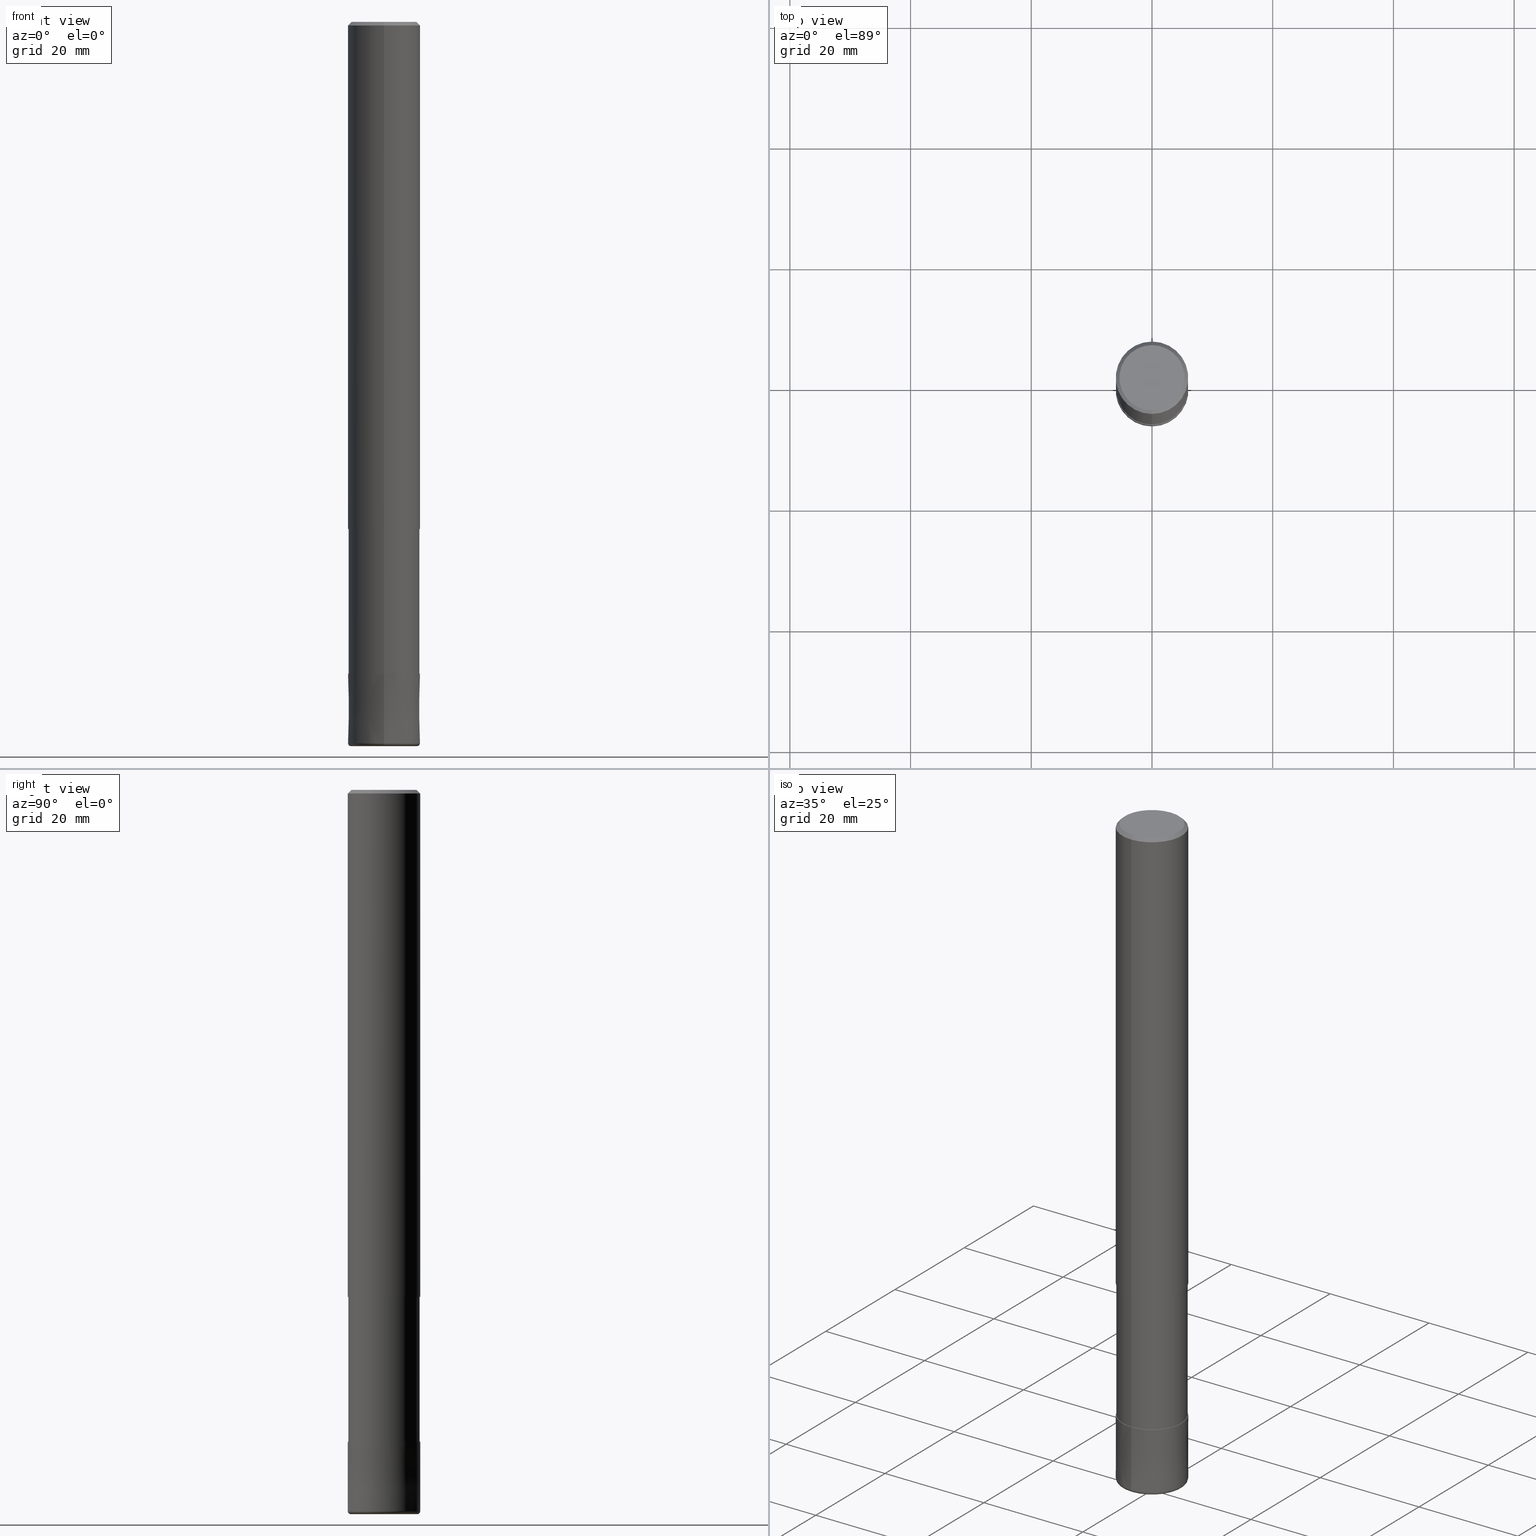
[diagram: canonical four-view strip — front | top / right | iso, engineering-drawing reading convention]
A machine part, canonical four-view strip (front | top / right | iso — engineering-drawing reading convention). The complete STEP part file that produces these views, byte-faithful:
ISO-10303-21;
HEADER;
FILE_DESCRIPTION(('no description'),'unknown implementation level');
FILE_NAME('HRRS4120-05-36-Huellk.stp','  ',('CIMSOURCE GmbH'),('CADClick - KiM GmbH - www.kimweb.de'),'unknown preprocess','ACIS','unknown authorization');
FILE_SCHEMA(('automotive_design'));
ENDSEC;
DATA;
#1=MECHANICAL_DESIGN_GEOMETRIC_PRESENTATION_REPRESENTATION(' ',(#14,#15,#16,#17,#18,#19,#20,#21,#22,#23,#24,#25,#26,#27,#28,#29,#30,#31,#32,#33,#34,#35,#36,#37,#38,#39,#40,#41,#42,#43,#44,#45,#46,#47,#48,#49,#50,#51,#52,#53,#54,#55,#56,#57,#58,#59,#60,#61,#62,#63,#64,#65,#66,#67,#68,#69,#70,#71,#72),#10);
#2=PRODUCT_DEFINITION_CONTEXT('',#73,'design');
#3=APPLICATION_PROTOCOL_DEFINITION('INTERNATIONAL STANDARD','automotive_design',1994,#73);
#4=PRODUCT_CATEGORY_RELATIONSHIP('NONE','NONE',#74,#75);
#5=SHAPE_DEFINITION_REPRESENTATION(#76,#77);
#6=PRODUCT_DEFINITION_CONTEXT('',#78,'design');
#7=APPLICATION_PROTOCOL_DEFINITION('INTERNATIONAL STANDARD','automotive_design',1994,#78);
#8=PRODUCT_CATEGORY_RELATIONSHIP('NONE','NONE',#79,#80);
#9=SHAPE_DEFINITION_REPRESENTATION(#81,#82);
#10= (GEOMETRIC_REPRESENTATION_CONTEXT(3)GLOBAL_UNCERTAINTY_ASSIGNED_CONTEXT((#85))GLOBAL_UNIT_ASSIGNED_CONTEXT((#87,#88,#89))REPRESENTATION_CONTEXT('NONE','WORKSPACE'));
#14=STYLED_ITEM('',(#91),#92);
#15=STYLED_ITEM('',(#93),#94);
#16=STYLED_ITEM('',(#95),#96);
#17=STYLED_ITEM('',(#97),#98);
#18=STYLED_ITEM('',(#99),#100);
#19=STYLED_ITEM('',(#101),#102);
#20=STYLED_ITEM('',(#103),#104);
#21=STYLED_ITEM('',(#105),#106);
#22=STYLED_ITEM('',(#107),#108);
#23=STYLED_ITEM('',(#109),#110);
#24=STYLED_ITEM('',(#111),#112);
#25=STYLED_ITEM('',(#113),#114);
#26=STYLED_ITEM('',(#115),#116);
#27=STYLED_ITEM('',(#117),#118);
#28=STYLED_ITEM('',(#119),#120);
#29=STYLED_ITEM('',(#121),#122);
#30=STYLED_ITEM('',(#123),#124);
#31=STYLED_ITEM('',(#125),#126);
#32=STYLED_ITEM('',(#127),#128);
#33=STYLED_ITEM('',(#129),#130);
#34=STYLED_ITEM('',(#131),#132);
#35=STYLED_ITEM('',(#133),#134);
#36=STYLED_ITEM('',(#135),#136);
#37=STYLED_ITEM('',(#137),#138);
#38=STYLED_ITEM('',(#139),#140);
#39=STYLED_ITEM('',(#141),#142);
#40=STYLED_ITEM('',(#143),#144);
#41=STYLED_ITEM('',(#145),#146);
#42=STYLED_ITEM('',(#147),#148);
#43=STYLED_ITEM('',(#149),#150);
#44=STYLED_ITEM('',(#151),#152);
#45=STYLED_ITEM('',(#153),#154);
#46=STYLED_ITEM('',(#155),#156);
#47=STYLED_ITEM('',(#157),#158);
#48=STYLED_ITEM('',(#159),#160);
#49=STYLED_ITEM('',(#161),#162);
#50=STYLED_ITEM('',(#163),#164);
#51=STYLED_ITEM('',(#165),#166);
#52=STYLED_ITEM('',(#167),#168);
#53=STYLED_ITEM('',(#169),#170);
#54=STYLED_ITEM('',(#171),#172);
#55=STYLED_ITEM('',(#173),#174);
#56=STYLED_ITEM('',(#175),#176);
#57=STYLED_ITEM('',(#177),#178);
#58=STYLED_ITEM('',(#179),#180);
#59=STYLED_ITEM('',(#181),#182);
#60=STYLED_ITEM('',(#183),#184);
#61=STYLED_ITEM('',(#185),#186);
#62=STYLED_ITEM('',(#187),#188);
#63=STYLED_ITEM('',(#189),#190);
#64=STYLED_ITEM('',(#191),#192);
#65=STYLED_ITEM('',(#193),#194);
#66=STYLED_ITEM('',(#195),#196);
#67=STYLED_ITEM('',(#197),#198);
#68=STYLED_ITEM('',(#199),#200);
#69=STYLED_ITEM('',(#201),#202);
#70=STYLED_ITEM('',(#203),#204);
#71=STYLED_ITEM('',(#205),#206);
#72=STYLED_ITEM('',(#207),#208);
#73=APPLICATION_CONTEXT(' ');
#74=PRODUCT_CATEGORY('part','NONE');
#75=PRODUCT_RELATED_PRODUCT_CATEGORY('detail',' ',(#209));
#76=PRODUCT_DEFINITION_SHAPE('NONE','NONE',#210);
#77=ADVANCED_BREP_SHAPE_REPRESENTATION('1',(#110,#211),#10);
#78=APPLICATION_CONTEXT(' ');
#79=PRODUCT_CATEGORY('part','NONE');
#80=PRODUCT_RELATED_PRODUCT_CATEGORY('detail',' ',(#212));
#81=PRODUCT_DEFINITION_SHAPE('NONE','NONE',#213);
#82=ADVANCED_BREP_SHAPE_REPRESENTATION('2',(#126,#214),#10);
#85=UNCERTAINTY_MEASURE_WITH_UNIT(LENGTH_MEASURE(1.0E-006),#87,'','');
#87= (CONVERSION_BASED_UNIT('MILLIMETRE',#217)LENGTH_UNIT()NAMED_UNIT(#220));
#88= (NAMED_UNIT(#222)PLANE_ANGLE_UNIT()SI_UNIT($,.RADIAN.));
#89= (NAMED_UNIT(#222)SOLID_ANGLE_UNIT()SI_UNIT($,.STERADIAN.));
#91=PRESENTATION_STYLE_ASSIGNMENT((#228));
#92=VERTEX_POINT('',#229);
#93=PRESENTATION_STYLE_ASSIGNMENT((#230));
#94=ADVANCED_FACE('',(#231),#232,.T.);
#95=PRESENTATION_STYLE_ASSIGNMENT((#233));
#96=ADVANCED_FACE('',(#234),#235,.T.);
#97=PRESENTATION_STYLE_ASSIGNMENT((#236));
#98=ADVANCED_FACE('',(#237,#238),#239,.T.);
#99=PRESENTATION_STYLE_ASSIGNMENT((#240));
#100=ADVANCED_FACE('',(#241),#242,.T.);
#101=PRESENTATION_STYLE_ASSIGNMENT((#243));
#102=ADVANCED_FACE('',(#244),#245,.T.);
#103=PRESENTATION_STYLE_ASSIGNMENT((#246));
#104=ADVANCED_FACE('',(#247),#248,.T.);
#105=PRESENTATION_STYLE_ASSIGNMENT((#249));
#106=ADVANCED_FACE('',(#250),#251,.T.);
#107=PRESENTATION_STYLE_ASSIGNMENT((#252));
#108=EDGE_CURVE('',#118,#128,#253,.T.);
#109=PRESENTATION_STYLE_ASSIGNMENT((#254));
#110=MANIFOLD_SOLID_BREP('1',#255);
#111=PRESENTATION_STYLE_ASSIGNMENT((#256));
#112=ADVANCED_FACE('',(#257),#258,.T.);
#113=PRESENTATION_STYLE_ASSIGNMENT((#259));
#114=ADVANCED_FACE('',(#260),#261,.T.);
#115=PRESENTATION_STYLE_ASSIGNMENT((#262));
#116=EDGE_CURVE('',#128,#186,#263,.T.);
#117=PRESENTATION_STYLE_ASSIGNMENT((#264));
#118=VERTEX_POINT('',#265);
#119=PRESENTATION_STYLE_ASSIGNMENT((#266));
#120=EDGE_CURVE('',#128,#144,#267,.T.);
#121=PRESENTATION_STYLE_ASSIGNMENT((#268));
#122=EDGE_CURVE('',#162,#124,#269,.T.);
#123=PRESENTATION_STYLE_ASSIGNMENT((#270));
#124=VERTEX_POINT('',#271);
#125=PRESENTATION_STYLE_ASSIGNMENT((#272));
#126=MANIFOLD_SOLID_BREP('2',#273);
#127=PRESENTATION_STYLE_ASSIGNMENT((#274));
#128=VERTEX_POINT('',#275);
#129=PRESENTATION_STYLE_ASSIGNMENT((#276));
#130=EDGE_CURVE('',#192,#144,#277,.T.);
#131=PRESENTATION_STYLE_ASSIGNMENT((#278));
#132=EDGE_CURVE('',#168,#202,#279,.T.);
#133=PRESENTATION_STYLE_ASSIGNMENT((#280));
#134=EDGE_CURVE('',#200,#204,#281,.T.);
#135=PRESENTATION_STYLE_ASSIGNMENT((#282));
#136=EDGE_CURVE('',#204,#200,#283,.T.);
#137=PRESENTATION_STYLE_ASSIGNMENT((#284));
#138=EDGE_CURVE('',#202,#168,#285,.T.);
#139=PRESENTATION_STYLE_ASSIGNMENT((#286));
#140=ADVANCED_FACE('',(#287),#288,.T.);
#141=PRESENTATION_STYLE_ASSIGNMENT((#289));
#142=ADVANCED_FACE('',(#290),#291,.T.);
#143=PRESENTATION_STYLE_ASSIGNMENT((#292));
#144=VERTEX_POINT('',#293);
#145=PRESENTATION_STYLE_ASSIGNMENT((#294));
#146=EDGE_CURVE('',#198,#118,#295,.T.);
#147=PRESENTATION_STYLE_ASSIGNMENT((#296));
#148=ADVANCED_FACE('',(#297),#298,.T.);
#149=PRESENTATION_STYLE_ASSIGNMENT((#299));
#150=ADVANCED_FACE('',(#300),#301,.T.);
#151=PRESENTATION_STYLE_ASSIGNMENT((#302));
#152=EDGE_CURVE('',#182,#206,#303,.T.);
#153=PRESENTATION_STYLE_ASSIGNMENT((#304));
#154=EDGE_CURVE('',#144,#192,#305,.T.);
#155=PRESENTATION_STYLE_ASSIGNMENT((#306));
#156=EDGE_CURVE('',#168,#200,#307,.T.);
#157=PRESENTATION_STYLE_ASSIGNMENT((#308));
#158=EDGE_CURVE('',#204,#202,#309,.T.);
#159=PRESENTATION_STYLE_ASSIGNMENT((#310));
#160=EDGE_CURVE('',#162,#168,#311,.T.);
#161=PRESENTATION_STYLE_ASSIGNMENT((#312));
#162=VERTEX_POINT('',#313);
#163=PRESENTATION_STYLE_ASSIGNMENT((#314));
#164=EDGE_CURVE('',#206,#182,#315,.T.);
#165=PRESENTATION_STYLE_ASSIGNMENT((#316));
#166=EDGE_CURVE('',#92,#172,#317,.T.);
#167=PRESENTATION_STYLE_ASSIGNMENT((#318));
#168=VERTEX_POINT('',#319);
#169=PRESENTATION_STYLE_ASSIGNMENT((#320));
#170=EDGE_CURVE('',#186,#198,#321,.T.);
#171=PRESENTATION_STYLE_ASSIGNMENT((#322));
#172=VERTEX_POINT('',#323);
#173=PRESENTATION_STYLE_ASSIGNMENT((#324));
#174=ADVANCED_FACE('',(#325),#326,.T.);
#175=PRESENTATION_STYLE_ASSIGNMENT((#327));
#176=EDGE_CURVE('',#172,#92,#328,.T.);
#177=PRESENTATION_STYLE_ASSIGNMENT((#329));
#178=EDGE_CURVE('',#202,#124,#330,.T.);
#179=PRESENTATION_STYLE_ASSIGNMENT((#331));
#180=EDGE_CURVE('',#206,#172,#332,.T.);
#181=PRESENTATION_STYLE_ASSIGNMENT((#333));
#182=VERTEX_POINT('',#334);
#183=PRESENTATION_STYLE_ASSIGNMENT((#335));
#184=EDGE_CURVE('',#192,#118,#336,.T.);
#185=PRESENTATION_STYLE_ASSIGNMENT((#337));
#186=VERTEX_POINT('',#338);
#187=PRESENTATION_STYLE_ASSIGNMENT((#339));
#188=EDGE_CURVE('',#198,#186,#340,.T.);
#189=PRESENTATION_STYLE_ASSIGNMENT((#341));
#190=ADVANCED_FACE('',(#342),#343,.T.);
#191=PRESENTATION_STYLE_ASSIGNMENT((#344));
#192=VERTEX_POINT('',#345);
#193=PRESENTATION_STYLE_ASSIGNMENT((#346));
#194=EDGE_CURVE('',#124,#162,#347,.T.);
#195=PRESENTATION_STYLE_ASSIGNMENT((#348));
#196=EDGE_CURVE('',#128,#118,#349,.T.);
#197=PRESENTATION_STYLE_ASSIGNMENT((#350));
#198=VERTEX_POINT('',#351);
#199=PRESENTATION_STYLE_ASSIGNMENT((#352));
#200=VERTEX_POINT('',#353);
#201=PRESENTATION_STYLE_ASSIGNMENT((#354));
#202=VERTEX_POINT('',#355);
#203=PRESENTATION_STYLE_ASSIGNMENT((#356));
#204=VERTEX_POINT('',#357);
#205=PRESENTATION_STYLE_ASSIGNMENT((#358));
#206=VERTEX_POINT('',#359);
#207=PRESENTATION_STYLE_ASSIGNMENT((#360));
#208=EDGE_CURVE('',#92,#182,#361,.T.);
#209=PRODUCT('1','1','PART-1-DESC',(#362));
#210=PRODUCT_DEFINITION('NONE','NONE',#363,#2);
#211=AXIS2_PLACEMENT_3D('',#364,#365,#366);
#212=PRODUCT('2','2','PART-2-DESC',(#367));
#213=PRODUCT_DEFINITION('NONE','NONE',#368,#6);
#214=AXIS2_PLACEMENT_3D('',#369,#370,#371);
#217=LENGTH_MEASURE_WITH_UNIT(LENGTH_MEASURE(1.0),#372);
#220=DIMENSIONAL_EXPONENTS(1.0,0.0,0.0,0.0,0.0,0.0,0.0);
#222=DIMENSIONAL_EXPONENTS(0.0,0.0,0.0,0.0,0.0,0.0,0.0);
#228=POINT_STYLE(' ',#373,POSITIVE_LENGTH_MEASURE(1.0E-006),#374);
#229=CARTESIAN_POINT('',(7.23736232077256E-016,-5.90995,-108.0));
#230=SURFACE_STYLE_USAGE(.BOTH.,#375);
#231=FACE_OUTER_BOUND('',#376,.T.);
#232=CONICAL_SURFACE('',#377,5.99995,8.69565217367361E-006);
#233=SURFACE_STYLE_USAGE(.BOTH.,#378);
#234=FACE_OUTER_BOUND('',#379,.T.);
#235=PLANE('',#380);
#236=SURFACE_STYLE_USAGE(.BOTH.,#381);
#237=FACE_OUTER_BOUND('',#382,.T.);
#238=FACE_BOUND('',#383,.T.);
#239=PLANE('',#384);
#240=SURFACE_STYLE_USAGE(.BOTH.,#385);
#241=FACE_OUTER_BOUND('',#386,.T.);
#242=CONICAL_SURFACE('',#387,5.7,0.785398163397453);
#243=SURFACE_STYLE_USAGE(.BOTH.,#388);
#244=FACE_OUTER_BOUND('',#389,.T.);
#245=PLANE('',#390);
#246=SURFACE_STYLE_USAGE(.BOTH.,#391);
#247=FACE_OUTER_BOUND('',#392,.T.);
#248=CYLINDRICAL_SURFACE('',#393,5.90995);
#249=SURFACE_STYLE_USAGE(.BOTH.,#394);
#250=FACE_OUTER_BOUND('',#395,.T.);
#251=TOROIDAL_SURFACE('',#396,5.5,0.499999999999995);
#252=CURVE_STYLE('',#397,POSITIVE_LENGTH_MEASURE(1.0E-006),#398);
#253=CIRCLE('',#399,6.0);
#254=SURFACE_STYLE_USAGE(.BOTH.,#400);
#255=CLOSED_SHELL('',(#148,#150,#190,#98,#96,#100,#174,#104,#112));
#256=SURFACE_STYLE_USAGE(.BOTH.,#401);
#257=FACE_OUTER_BOUND('',#402,.T.);
#258=PLANE('',#403);
#259=SURFACE_STYLE_USAGE(.BOTH.,#404);
#260=FACE_OUTER_BOUND('',#405,.T.);
#261=TOROIDAL_SURFACE('',#406,5.5,0.499999999999995);
#262=CURVE_STYLE('',#407,POSITIVE_LENGTH_MEASURE(1.0E-006),#408);
#263=CIRCLE('',#409,0.499999999999995);
#264=POINT_STYLE(' ',#410,POSITIVE_LENGTH_MEASURE(1.0E-006),#411);
#265=CARTESIAN_POINT('',(0.0,6.0,-119.5));
#266=CURVE_STYLE('',#412,POSITIVE_LENGTH_MEASURE(1.0E-006),#413);
#267=LINE('',#414,#415);
#268=CURVE_STYLE('',#416,POSITIVE_LENGTH_MEASURE(1.0E-006),#417);
#269=CIRCLE('',#418,5.4);
#270=POINT_STYLE(' ',#419,POSITIVE_LENGTH_MEASURE(1.0E-006),#420);
#271=CARTESIAN_POINT('',(6.61287431064084E-016,-5.4,0.0));
#272=SURFACE_STYLE_USAGE(.BOTH.,#421);
#273=CLOSED_SHELL('',(#106,#140,#142,#94,#114,#102));
#274=POINT_STYLE(' ',#422,POSITIVE_LENGTH_MEASURE(1.0E-006),#423);
#275=CARTESIAN_POINT('',(7.34763812293426E-016,-6.0,-119.5));
#276=CURVE_STYLE('',#424,POSITIVE_LENGTH_MEASURE(1.0E-006),#425);
#277=CIRCLE('',#426,5.9999);
#278=CURVE_STYLE('',#427,POSITIVE_LENGTH_MEASURE(1.0E-006),#428);
#279=CIRCLE('',#429,6.0);
#280=CURVE_STYLE('',#430,POSITIVE_LENGTH_MEASURE(1.0E-006),#431);
#281=CIRCLE('',#432,6.0);
#282=CURVE_STYLE('',#433,POSITIVE_LENGTH_MEASURE(1.0E-006),#434);
#283=CIRCLE('',#435,6.0);
#284=CURVE_STYLE('',#436,POSITIVE_LENGTH_MEASURE(1.0E-006),#437);
#285=CIRCLE('',#438,6.0);
#286=SURFACE_STYLE_USAGE(.BOTH.,#439);
#287=FACE_OUTER_BOUND('',#440,.T.);
#288=CONICAL_SURFACE('',#441,5.99995,8.69565217367361E-006);
#289=SURFACE_STYLE_USAGE(.BOTH.,#442);
#290=FACE_OUTER_BOUND('',#443,.T.);
#291=PLANE('',#444);
#292=POINT_STYLE(' ',#445,POSITIVE_LENGTH_MEASURE(1.0E-006),#446);
#293=CARTESIAN_POINT('',(7.34751566229888E-016,-5.9999,-108.0));
#294=CURVE_STYLE('',#447,POSITIVE_LENGTH_MEASURE(1.0E-006),#448);
#295=CIRCLE('',#449,0.499999999999995);
#296=SURFACE_STYLE_USAGE(.BOTH.,#450);
#297=FACE_OUTER_BOUND('',#451,.T.);
#298=CYLINDRICAL_SURFACE('',#452,5.90995);
#299=SURFACE_STYLE_USAGE(.BOTH.,#453);
#300=FACE_OUTER_BOUND('',#454,.T.);
#301=CYLINDRICAL_SURFACE('',#455,6.0);
#302=CURVE_STYLE('',#456,POSITIVE_LENGTH_MEASURE(1.0E-006),#457);
#303=CIRCLE('',#458,5.90995);
#304=CURVE_STYLE('',#459,POSITIVE_LENGTH_MEASURE(1.0E-006),#460);
#305=CIRCLE('',#461,5.9999);
#306=CURVE_STYLE('',#462,POSITIVE_LENGTH_MEASURE(1.0E-006),#463);
#307=LINE('',#464,#465);
#308=CURVE_STYLE('',#466,POSITIVE_LENGTH_MEASURE(1.0E-006),#467);
#309=LINE('',#468,#469);
#310=CURVE_STYLE('',#470,POSITIVE_LENGTH_MEASURE(1.0E-006),#471);
#311=LINE('',#472,#473);
#312=POINT_STYLE(' ',#474,POSITIVE_LENGTH_MEASURE(1.0E-006),#475);
#313=CARTESIAN_POINT('',(0.0,5.4,0.0));
#314=CURVE_STYLE('',#476,POSITIVE_LENGTH_MEASURE(1.0E-006),#477);
#315=CIRCLE('',#478,5.90995);
#316=CURVE_STYLE('',#479,POSITIVE_LENGTH_MEASURE(1.0E-006),#480);
#317=CIRCLE('',#481,5.90995);
#318=POINT_STYLE(' ',#482,POSITIVE_LENGTH_MEASURE(1.0E-006),#483);
#319=CARTESIAN_POINT('',(0.0,6.0,-0.599999999999994));
#320=CURVE_STYLE('',#484,POSITIVE_LENGTH_MEASURE(1.0E-006),#485);
#321=CIRCLE('',#486,5.5);
#322=POINT_STYLE(' ',#487,POSITIVE_LENGTH_MEASURE(1.0E-006),#488);
#323=CARTESIAN_POINT('',(0.0,5.90995,-108.0));
#324=SURFACE_STYLE_USAGE(.BOTH.,#489);
#325=FACE_OUTER_BOUND('',#490,.T.);
#326=CYLINDRICAL_SURFACE('',#491,6.0);
#327=CURVE_STYLE('',#492,POSITIVE_LENGTH_MEASURE(1.0E-006),#493);
#328=CIRCLE('',#494,5.90995);
#329=CURVE_STYLE('',#495,POSITIVE_LENGTH_MEASURE(1.0E-006),#496);
#330=LINE('',#497,#498);
#331=CURVE_STYLE('',#499,POSITIVE_LENGTH_MEASURE(1.0E-006),#500);
#332=LINE('',#501,#502);
#333=POINT_STYLE(' ',#503,POSITIVE_LENGTH_MEASURE(1.0E-006),#504);
#334=CARTESIAN_POINT('',(7.23736232077256E-016,-5.90995,-84.0));
#335=CURVE_STYLE('',#505,POSITIVE_LENGTH_MEASURE(1.0E-006),#506);
#336=LINE('',#507,#508);
#337=POINT_STYLE(' ',#509,POSITIVE_LENGTH_MEASURE(1.0E-006),#510);
#338=CARTESIAN_POINT('',(6.73533494602307E-016,-5.5,-120.0));
#339=CURVE_STYLE('',#511,POSITIVE_LENGTH_MEASURE(1.0E-006),#512);
#340=CIRCLE('',#513,5.5);
#341=SURFACE_STYLE_USAGE(.BOTH.,#514);
#342=FACE_OUTER_BOUND('',#515,.T.);
#343=CONICAL_SURFACE('',#516,5.7,0.785398163397453);
#344=POINT_STYLE(' ',#517,POSITIVE_LENGTH_MEASURE(1.0E-006),#518);
#345=CARTESIAN_POINT('',(0.0,5.9999,-108.0));
#346=CURVE_STYLE('',#519,POSITIVE_LENGTH_MEASURE(1.0E-006),#520);
#347=CIRCLE('',#521,5.4);
#348=CURVE_STYLE('',#522,POSITIVE_LENGTH_MEASURE(1.0E-006),#523);
#349=CIRCLE('',#524,6.0);
#350=POINT_STYLE(' ',#525,POSITIVE_LENGTH_MEASURE(1.0E-006),#526);
#351=CARTESIAN_POINT('',(0.0,5.5,-120.0));
#352=POINT_STYLE(' ',#527,POSITIVE_LENGTH_MEASURE(1.0E-006),#528);
#353=CARTESIAN_POINT('',(0.0,6.0,-84.0));
#354=POINT_STYLE(' ',#529,POSITIVE_LENGTH_MEASURE(1.0E-006),#530);
#355=CARTESIAN_POINT('',(7.34763812293426E-016,-6.0,-0.599999999999994));
#356=POINT_STYLE(' ',#531,POSITIVE_LENGTH_MEASURE(1.0E-006),#532);
#357=CARTESIAN_POINT('',(7.34763812293426E-016,-6.0,-84.0));
#358=POINT_STYLE(' ',#533,POSITIVE_LENGTH_MEASURE(1.0E-006),#534);
#359=CARTESIAN_POINT('',(0.0,5.90995,-84.0));
#360=CURVE_STYLE('',#535,POSITIVE_LENGTH_MEASURE(1.0E-006),#536);
#361=LINE('',#537,#538);
#362=PRODUCT_CONTEXT('',#73,'mechanical');
#363=PRODUCT_DEFINITION_FORMATION_WITH_SPECIFIED_SOURCE(' ','NONE',#209,.NOT_KNOWN.);
#364=CARTESIAN_POINT('',(0.0,0.0,0.0));
#365=DIRECTION('',(0.0,0.0,1.0));
#366=DIRECTION('',(1.0,0.0,0.0));
#367=PRODUCT_CONTEXT('',#78,'mechanical');
#368=PRODUCT_DEFINITION_FORMATION_WITH_SPECIFIED_SOURCE(' ','NONE',#212,.NOT_KNOWN.);
#369=CARTESIAN_POINT('',(0.0,0.0,0.0));
#370=DIRECTION('',(0.0,0.0,1.0));
#371=DIRECTION('',(1.0,0.0,0.0));
#372= (NAMED_UNIT(#220)LENGTH_UNIT()SI_UNIT(.MILLI.,.METRE.));
#373=PRE_DEFINED_MARKER('');
#374=COLOUR_RGB('',0.498039215803146,0.498039215803146,0.498039215803146);
#375=SURFACE_SIDE_STYLE('',(#540));
#376=EDGE_LOOP('',(#541,#542,#543,#544));
#377=AXIS2_PLACEMENT_3D('',#545,#546,#547);
#378=SURFACE_SIDE_STYLE('',(#548));
#379=EDGE_LOOP('',(#549,#550));
#380=AXIS2_PLACEMENT_3D('',#551,#552,#553);
#381=SURFACE_SIDE_STYLE('',(#554));
#382=EDGE_LOOP('',(#555,#556));
#383=EDGE_LOOP('',(#557,#558));
#384=AXIS2_PLACEMENT_3D('',#559,#560,#561);
#385=SURFACE_SIDE_STYLE('',(#562));
#386=EDGE_LOOP('',(#563,#564,#565,#566));
#387=AXIS2_PLACEMENT_3D('',#567,#568,#569);
#388=SURFACE_SIDE_STYLE('',(#570));
#389=EDGE_LOOP('',(#571,#572));
#390=AXIS2_PLACEMENT_3D('',#573,#574,#575);
#391=SURFACE_SIDE_STYLE('',(#576));
#392=EDGE_LOOP('',(#577,#578,#579,#580));
#393=AXIS2_PLACEMENT_3D('',#581,#582,#583);
#394=SURFACE_SIDE_STYLE('',(#584));
#395=EDGE_LOOP('',(#585,#586,#587,#588));
#396=AXIS2_PLACEMENT_3D('',#589,#590,#591);
#397=DRAUGHTING_PRE_DEFINED_CURVE_FONT('continuous');
#398=COLOUR_RGB('',0.800000011920929,0.800000011920929,0.800000011920929);
#399=AXIS2_PLACEMENT_3D('',#592,#593,#594);
#400=SURFACE_SIDE_STYLE('',(#595));
#401=SURFACE_SIDE_STYLE('',(#596));
#402=EDGE_LOOP('',(#597,#598));
#403=AXIS2_PLACEMENT_3D('',#599,#600,#601);
#404=SURFACE_SIDE_STYLE('',(#602));
#405=EDGE_LOOP('',(#603,#604,#605,#606));
#406=AXIS2_PLACEMENT_3D('',#607,#608,#609);
#407=DRAUGHTING_PRE_DEFINED_CURVE_FONT('continuous');
#408=COLOUR_RGB('',0.800000011920929,0.800000011920929,0.800000011920929);
#409=AXIS2_PLACEMENT_3D('',#610,#611,#612);
#410=PRE_DEFINED_MARKER('');
#411=COLOUR_RGB('',0.800000011920929,0.800000011920929,0.800000011920929);
#412=DRAUGHTING_PRE_DEFINED_CURVE_FONT('continuous');
#413=COLOUR_RGB('',0.800000011920929,0.800000011920929,0.800000011920929);
#414=CARTESIAN_POINT('',(7.34757689261657E-016,-5.99995,-113.75));
#415=VECTOR('',#613,1.0);
#416=DRAUGHTING_PRE_DEFINED_CURVE_FONT('continuous');
#417=COLOUR_RGB('',0.498039215803146,0.498039215803146,0.498039215803146);
#418=AXIS2_PLACEMENT_3D('',#614,#615,#616);
#419=PRE_DEFINED_MARKER('');
#420=COLOUR_RGB('',0.498039215803146,0.498039215803146,0.498039215803146);
#421=SURFACE_SIDE_STYLE('',(#617));
#422=PRE_DEFINED_MARKER('');
#423=COLOUR_RGB('',0.800000011920929,0.800000011920929,0.800000011920929);
#424=DRAUGHTING_PRE_DEFINED_CURVE_FONT('continuous');
#425=COLOUR_RGB('',0.800000011920929,0.800000011920929,0.800000011920929);
#426=AXIS2_PLACEMENT_3D('',#618,#619,#620);
#427=DRAUGHTING_PRE_DEFINED_CURVE_FONT('continuous');
#428=COLOUR_RGB('',0.498039215803146,0.498039215803146,0.498039215803146);
#429=AXIS2_PLACEMENT_3D('',#621,#622,#623);
#430=DRAUGHTING_PRE_DEFINED_CURVE_FONT('continuous');
#431=COLOUR_RGB('',0.498039215803146,0.498039215803146,0.498039215803146);
#432=AXIS2_PLACEMENT_3D('',#624,#625,#626);
#433=DRAUGHTING_PRE_DEFINED_CURVE_FONT('continuous');
#434=COLOUR_RGB('',0.498039215803146,0.498039215803146,0.498039215803146);
#435=AXIS2_PLACEMENT_3D('',#627,#628,#629);
#436=DRAUGHTING_PRE_DEFINED_CURVE_FONT('continuous');
#437=COLOUR_RGB('',0.498039215803146,0.498039215803146,0.498039215803146);
#438=AXIS2_PLACEMENT_3D('',#630,#631,#632);
#439=SURFACE_SIDE_STYLE('',(#633));
#440=EDGE_LOOP('',(#634,#635,#636,#637));
#441=AXIS2_PLACEMENT_3D('',#638,#639,#640);
#442=SURFACE_SIDE_STYLE('',(#641));
#443=EDGE_LOOP('',(#642,#643));
#444=AXIS2_PLACEMENT_3D('',#644,#645,#646);
#445=PRE_DEFINED_MARKER('');
#446=COLOUR_RGB('',0.800000011920929,0.800000011920929,0.800000011920929);
#447=DRAUGHTING_PRE_DEFINED_CURVE_FONT('continuous');
#448=COLOUR_RGB('',0.800000011920929,0.800000011920929,0.800000011920929);
#449=AXIS2_PLACEMENT_3D('',#647,#648,#649);
#450=SURFACE_SIDE_STYLE('',(#650));
#451=EDGE_LOOP('',(#651,#652,#653,#654));
#452=AXIS2_PLACEMENT_3D('',#655,#656,#657);
#453=SURFACE_SIDE_STYLE('',(#658));
#454=EDGE_LOOP('',(#659,#660,#661,#662));
#455=AXIS2_PLACEMENT_3D('',#663,#664,#665);
#456=DRAUGHTING_PRE_DEFINED_CURVE_FONT('continuous');
#457=COLOUR_RGB('',0.498039215803146,0.498039215803146,0.498039215803146);
#458=AXIS2_PLACEMENT_3D('',#666,#667,#668);
#459=DRAUGHTING_PRE_DEFINED_CURVE_FONT('continuous');
#460=COLOUR_RGB('',0.800000011920929,0.800000011920929,0.800000011920929);
#461=AXIS2_PLACEMENT_3D('',#669,#670,#671);
#462=DRAUGHTING_PRE_DEFINED_CURVE_FONT('continuous');
#463=COLOUR_RGB('',0.498039215803146,0.498039215803146,0.498039215803146);
#464=CARTESIAN_POINT('',(-7.34763812293426E-016,6.0,-42.3));
#465=VECTOR('',#672,1.0);
#466=DRAUGHTING_PRE_DEFINED_CURVE_FONT('continuous');
#467=COLOUR_RGB('',0.498039215803146,0.498039215803146,0.498039215803146);
#468=CARTESIAN_POINT('',(7.34763812293426E-016,-6.0,-42.3));
#469=VECTOR('',#673,1.0);
#470=DRAUGHTING_PRE_DEFINED_CURVE_FONT('continuous');
#471=COLOUR_RGB('',0.498039215803146,0.498039215803146,0.498039215803146);
#472=CARTESIAN_POINT('',(-6.98025621678755E-016,5.7,-0.299999999999997));
#473=VECTOR('',#674,1.0);
#474=PRE_DEFINED_MARKER('');
#475=COLOUR_RGB('',0.498039215803146,0.498039215803146,0.498039215803146);
#476=DRAUGHTING_PRE_DEFINED_CURVE_FONT('continuous');
#477=COLOUR_RGB('',0.498039215803146,0.498039215803146,0.498039215803146);
#478=AXIS2_PLACEMENT_3D('',#675,#676,#677);
#479=DRAUGHTING_PRE_DEFINED_CURVE_FONT('continuous');
#480=COLOUR_RGB('',0.498039215803146,0.498039215803146,0.498039215803146);
#481=AXIS2_PLACEMENT_3D('',#678,#679,#680);
#482=PRE_DEFINED_MARKER('');
#483=COLOUR_RGB('',0.498039215803146,0.498039215803146,0.498039215803146);
#484=DRAUGHTING_PRE_DEFINED_CURVE_FONT('continuous');
#485=COLOUR_RGB('',0.800000011920929,0.800000011920929,0.800000011920929);
#486=AXIS2_PLACEMENT_3D('',#681,#682,#683);
#487=PRE_DEFINED_MARKER('');
#488=COLOUR_RGB('',0.498039215803146,0.498039215803146,0.498039215803146);
#489=SURFACE_SIDE_STYLE('',(#684));
#490=EDGE_LOOP('',(#685,#686,#687,#688));
#491=AXIS2_PLACEMENT_3D('',#689,#690,#691);
#492=DRAUGHTING_PRE_DEFINED_CURVE_FONT('continuous');
#493=COLOUR_RGB('',0.498039215803146,0.498039215803146,0.498039215803146);
#494=AXIS2_PLACEMENT_3D('',#692,#693,#694);
#495=DRAUGHTING_PRE_DEFINED_CURVE_FONT('continuous');
#496=COLOUR_RGB('',0.498039215803146,0.498039215803146,0.498039215803146);
#497=CARTESIAN_POINT('',(6.98025621678755E-016,-5.7,-0.299999999999997));
#498=VECTOR('',#695,1.0);
#499=DRAUGHTING_PRE_DEFINED_CURVE_FONT('continuous');
#500=COLOUR_RGB('',0.498039215803146,0.498039215803146,0.498039215803146);
#501=CARTESIAN_POINT('',(-7.23736232077256E-016,5.90995,-96.0));
#502=VECTOR('',#696,1.0);
#503=PRE_DEFINED_MARKER('');
#504=COLOUR_RGB('',0.498039215803146,0.498039215803146,0.498039215803146);
#505=DRAUGHTING_PRE_DEFINED_CURVE_FONT('continuous');
#506=COLOUR_RGB('',0.800000011920929,0.800000011920929,0.800000011920929);
#507=CARTESIAN_POINT('',(-7.34757689261657E-016,5.99995,-113.75));
#508=VECTOR('',#697,1.0);
#509=PRE_DEFINED_MARKER('');
#510=COLOUR_RGB('',0.800000011920929,0.800000011920929,0.800000011920929);
#511=DRAUGHTING_PRE_DEFINED_CURVE_FONT('continuous');
#512=COLOUR_RGB('',0.800000011920929,0.800000011920929,0.800000011920929);
#513=AXIS2_PLACEMENT_3D('',#698,#699,#700);
#514=SURFACE_SIDE_STYLE('',(#701));
#515=EDGE_LOOP('',(#702,#703,#704,#705));
#516=AXIS2_PLACEMENT_3D('',#706,#707,#708);
#517=PRE_DEFINED_MARKER('');
#518=COLOUR_RGB('',0.800000011920929,0.800000011920929,0.800000011920929);
#519=DRAUGHTING_PRE_DEFINED_CURVE_FONT('continuous');
#520=COLOUR_RGB('',0.498039215803146,0.498039215803146,0.498039215803146);
#521=AXIS2_PLACEMENT_3D('',#709,#710,#711);
#522=DRAUGHTING_PRE_DEFINED_CURVE_FONT('continuous');
#523=COLOUR_RGB('',0.800000011920929,0.800000011920929,0.800000011920929);
#524=AXIS2_PLACEMENT_3D('',#712,#713,#714);
#525=PRE_DEFINED_MARKER('');
#526=COLOUR_RGB('',0.800000011920929,0.800000011920929,0.800000011920929);
#527=PRE_DEFINED_MARKER('');
#528=COLOUR_RGB('',0.498039215803146,0.498039215803146,0.498039215803146);
#529=PRE_DEFINED_MARKER('');
#530=COLOUR_RGB('',0.498039215803146,0.498039215803146,0.498039215803146);
#531=PRE_DEFINED_MARKER('');
#532=COLOUR_RGB('',0.498039215803146,0.498039215803146,0.498039215803146);
#533=PRE_DEFINED_MARKER('');
#534=COLOUR_RGB('',0.498039215803146,0.498039215803146,0.498039215803146);
#535=DRAUGHTING_PRE_DEFINED_CURVE_FONT('continuous');
#536=COLOUR_RGB('',0.498039215803146,0.498039215803146,0.498039215803146);
#537=CARTESIAN_POINT('',(7.23736232077256E-016,-5.90995,-96.0));
#538=VECTOR('',#715,1.0);
#540=SURFACE_STYLE_FILL_AREA(#716);
#541=ORIENTED_EDGE('',*,*,#184,.T.);
#542=ORIENTED_EDGE('',*,*,#196,.F.);
#543=ORIENTED_EDGE('',*,*,#120,.T.);
#544=ORIENTED_EDGE('',*,*,#154,.T.);
#545=CARTESIAN_POINT('',(0.0,0.0,-113.75));
#546=DIRECTION('',(0.0,-0.0,-1.0));
#547=DIRECTION('',(0.0,1.0,0.0));
#548=SURFACE_STYLE_FILL_AREA(#717);
#549=ORIENTED_EDGE('',*,*,#122,.F.);
#550=ORIENTED_EDGE('',*,*,#194,.F.);
#551=CARTESIAN_POINT('',(0.0,2.7,0.0));
#552=DIRECTION('',(-0.0,0.0,1.0));
#553=DIRECTION('',(0.0,-1.0,0.0));
#554=SURFACE_STYLE_FILL_AREA(#718);
#555=ORIENTED_EDGE('',*,*,#134,.T.);
#556=ORIENTED_EDGE('',*,*,#136,.T.);
#557=ORIENTED_EDGE('',*,*,#164,.F.);
#558=ORIENTED_EDGE('',*,*,#152,.F.);
#559=CARTESIAN_POINT('',(0.0,3.0,-84.0));
#560=DIRECTION('',(0.0,0.0,-1.0));
#561=DIRECTION('',(0.0,1.0,0.0));
#562=SURFACE_STYLE_FILL_AREA(#719);
#563=ORIENTED_EDGE('',*,*,#160,.T.);
#564=ORIENTED_EDGE('',*,*,#138,.F.);
#565=ORIENTED_EDGE('',*,*,#178,.T.);
#566=ORIENTED_EDGE('',*,*,#194,.T.);
#567=CARTESIAN_POINT('',(0.0,0.0,-0.299999999999997));
#568=DIRECTION('',(0.0,-0.0,-1.0));
#569=DIRECTION('',(0.0,1.0,0.0));
#570=SURFACE_STYLE_FILL_AREA(#720);
#571=ORIENTED_EDGE('',*,*,#188,.T.);
#572=ORIENTED_EDGE('',*,*,#170,.T.);
#573=CARTESIAN_POINT('',(0.0,2.75,-120.0));
#574=DIRECTION('',(0.0,0.0,-1.0));
#575=DIRECTION('',(0.0,1.0,0.0));
#576=SURFACE_STYLE_FILL_AREA(#721);
#577=ORIENTED_EDGE('',*,*,#180,.T.);
#578=ORIENTED_EDGE('',*,*,#166,.F.);
#579=ORIENTED_EDGE('',*,*,#208,.T.);
#580=ORIENTED_EDGE('',*,*,#152,.T.);
#581=CARTESIAN_POINT('',(0.0,0.0,-96.0));
#582=DIRECTION('',(-0.0,-0.0,1.0));
#583=DIRECTION('',(0.0,1.0,0.0));
#584=SURFACE_STYLE_FILL_AREA(#722);
#585=ORIENTED_EDGE('',*,*,#116,.F.);
#586=ORIENTED_EDGE('',*,*,#196,.T.);
#587=ORIENTED_EDGE('',*,*,#146,.F.);
#588=ORIENTED_EDGE('',*,*,#170,.F.);
#589=CARTESIAN_POINT('',(0.0,0.0,-119.5));
#590=DIRECTION('',(0.0,0.0,-1.0));
#591=DIRECTION('',(0.0,-1.0,0.0));
#592=CARTESIAN_POINT('',(0.0,0.0,-119.5));
#593=DIRECTION('',(0.0,0.0,-1.0));
#594=DIRECTION('',(0.0,1.0,0.0));
#595=SURFACE_STYLE_FILL_AREA(#723);
#596=SURFACE_STYLE_FILL_AREA(#724);
#597=ORIENTED_EDGE('',*,*,#176,.T.);
#598=ORIENTED_EDGE('',*,*,#166,.T.);
#599=CARTESIAN_POINT('',(0.0,2.954975,-108.0));
#600=DIRECTION('',(0.0,0.0,-1.0));
#601=DIRECTION('',(0.0,1.0,0.0));
#602=SURFACE_STYLE_FILL_AREA(#725);
#603=ORIENTED_EDGE('',*,*,#116,.T.);
#604=ORIENTED_EDGE('',*,*,#188,.F.);
#605=ORIENTED_EDGE('',*,*,#146,.T.);
#606=ORIENTED_EDGE('',*,*,#108,.T.);
#607=CARTESIAN_POINT('',(0.0,0.0,-119.5));
#608=DIRECTION('',(0.0,0.0,-1.0));
#609=DIRECTION('',(0.0,-1.0,0.0));
#610=CARTESIAN_POINT('',(6.73533494602308E-016,-5.5,-119.5));
#611=DIRECTION('',(1.0,1.22460635382238E-016,0.0));
#612=DIRECTION('',(1.22460635382238E-016,-1.0,-0.0));
#613=DIRECTION('',(-1.06487509023759E-021,8.69565217356402E-006,0.999999999962193));
#614=CARTESIAN_POINT('',(0.0,0.0,0.0));
#615=DIRECTION('',(0.0,0.0,-1.0));
#616=DIRECTION('',(0.0,1.0,0.0));
#617=SURFACE_STYLE_FILL_AREA(#726);
#618=CARTESIAN_POINT('',(0.0,0.0,-108.0));
#619=DIRECTION('',(0.0,0.0,-1.0));
#620=DIRECTION('',(0.0,1.0,0.0));
#621=CARTESIAN_POINT('',(0.0,0.0,-0.599999999999994));
#622=DIRECTION('',(0.0,0.0,-1.0));
#623=DIRECTION('',(0.0,1.0,0.0));
#624=CARTESIAN_POINT('',(0.0,0.0,-84.0));
#625=DIRECTION('',(0.0,0.0,-1.0));
#626=DIRECTION('',(0.0,1.0,0.0));
#627=CARTESIAN_POINT('',(0.0,0.0,-84.0));
#628=DIRECTION('',(0.0,0.0,-1.0));
#629=DIRECTION('',(0.0,1.0,0.0));
#630=CARTESIAN_POINT('',(0.0,0.0,-0.599999999999994));
#631=DIRECTION('',(0.0,0.0,-1.0));
#632=DIRECTION('',(0.0,1.0,0.0));
#633=SURFACE_STYLE_FILL_AREA(#727);
#634=ORIENTED_EDGE('',*,*,#184,.F.);
#635=ORIENTED_EDGE('',*,*,#130,.T.);
#636=ORIENTED_EDGE('',*,*,#120,.F.);
#637=ORIENTED_EDGE('',*,*,#108,.F.);
#638=CARTESIAN_POINT('',(0.0,0.0,-113.75));
#639=DIRECTION('',(0.0,-0.0,-1.0));
#640=DIRECTION('',(0.0,1.0,0.0));
#641=SURFACE_STYLE_FILL_AREA(#728);
#642=ORIENTED_EDGE('',*,*,#130,.F.);
#643=ORIENTED_EDGE('',*,*,#154,.F.);
#644=CARTESIAN_POINT('',(0.0,2.99995,-108.0));
#645=DIRECTION('',(-0.0,0.0,1.0));
#646=DIRECTION('',(0.0,-1.0,0.0));
#647=CARTESIAN_POINT('',(-6.73533494602308E-016,5.5,-119.5));
#648=DIRECTION('',(1.0,1.22460635382238E-016,0.0));
#649=DIRECTION('',(-1.22460635382238E-016,1.0,0.0));
#650=SURFACE_STYLE_FILL_AREA(#729);
#651=ORIENTED_EDGE('',*,*,#180,.F.);
#652=ORIENTED_EDGE('',*,*,#164,.T.);
#653=ORIENTED_EDGE('',*,*,#208,.F.);
#654=ORIENTED_EDGE('',*,*,#176,.F.);
#655=CARTESIAN_POINT('',(0.0,0.0,-96.0));
#656=DIRECTION('',(-0.0,-0.0,1.0));
#657=DIRECTION('',(0.0,1.0,0.0));
#658=SURFACE_STYLE_FILL_AREA(#730);
#659=ORIENTED_EDGE('',*,*,#156,.F.);
#660=ORIENTED_EDGE('',*,*,#132,.T.);
#661=ORIENTED_EDGE('',*,*,#158,.F.);
#662=ORIENTED_EDGE('',*,*,#134,.F.);
#663=CARTESIAN_POINT('',(0.0,0.0,-42.3));
#664=DIRECTION('',(-0.0,-0.0,1.0));
#665=DIRECTION('',(0.0,1.0,0.0));
#666=CARTESIAN_POINT('',(0.0,0.0,-84.0));
#667=DIRECTION('',(0.0,0.0,-1.0));
#668=DIRECTION('',(0.0,1.0,0.0));
#669=CARTESIAN_POINT('',(0.0,0.0,-108.0));
#670=DIRECTION('',(0.0,0.0,-1.0));
#671=DIRECTION('',(0.0,1.0,0.0));
#672=DIRECTION('',(0.0,0.0,-1.0));
#673=DIRECTION('',(-0.0,-0.0,1.0));
#674=DIRECTION('',(-8.65927457071939E-017,0.707106781186551,-0.707106781186544));
#675=CARTESIAN_POINT('',(0.0,0.0,-84.0));
#676=DIRECTION('',(0.0,0.0,-1.0));
#677=DIRECTION('',(0.0,1.0,0.0));
#678=CARTESIAN_POINT('',(0.0,0.0,-108.0));
#679=DIRECTION('',(0.0,0.0,-1.0));
#680=DIRECTION('',(0.0,1.0,0.0));
#681=CARTESIAN_POINT('',(0.0,0.0,-120.0));
#682=DIRECTION('',(0.0,0.0,-1.0));
#683=DIRECTION('',(0.0,1.0,0.0));
#684=SURFACE_STYLE_FILL_AREA(#731);
#685=ORIENTED_EDGE('',*,*,#156,.T.);
#686=ORIENTED_EDGE('',*,*,#136,.F.);
#687=ORIENTED_EDGE('',*,*,#158,.T.);
#688=ORIENTED_EDGE('',*,*,#138,.T.);
#689=CARTESIAN_POINT('',(0.0,0.0,-42.3));
#690=DIRECTION('',(-0.0,-0.0,1.0));
#691=DIRECTION('',(0.0,1.0,0.0));
#692=CARTESIAN_POINT('',(0.0,0.0,-108.0));
#693=DIRECTION('',(0.0,0.0,-1.0));
#694=DIRECTION('',(0.0,1.0,0.0));
#695=DIRECTION('',(-8.65927457071939E-017,0.707106781186551,0.707106781186544));
#696=DIRECTION('',(0.0,0.0,-1.0));
#697=DIRECTION('',(-1.06487509023759E-021,8.69565217356402E-006,-0.999999999962193));
#698=CARTESIAN_POINT('',(0.0,0.0,-120.0));
#699=DIRECTION('',(0.0,0.0,-1.0));
#700=DIRECTION('',(0.0,1.0,0.0));
#701=SURFACE_STYLE_FILL_AREA(#732);
#702=ORIENTED_EDGE('',*,*,#160,.F.);
#703=ORIENTED_EDGE('',*,*,#122,.T.);
#704=ORIENTED_EDGE('',*,*,#178,.F.);
#705=ORIENTED_EDGE('',*,*,#132,.F.);
#706=CARTESIAN_POINT('',(0.0,0.0,-0.299999999999997));
#707=DIRECTION('',(0.0,-0.0,-1.0));
#708=DIRECTION('',(0.0,1.0,0.0));
#709=CARTESIAN_POINT('',(0.0,0.0,0.0));
#710=DIRECTION('',(0.0,0.0,-1.0));
#711=DIRECTION('',(0.0,1.0,0.0));
#712=CARTESIAN_POINT('',(0.0,0.0,-119.5));
#713=DIRECTION('',(0.0,0.0,-1.0));
#714=DIRECTION('',(0.0,1.0,0.0));
#715=DIRECTION('',(-0.0,-0.0,1.0));
#716=FILL_AREA_STYLE('',(#733));
#717=FILL_AREA_STYLE('',(#734));
#718=FILL_AREA_STYLE('',(#735));
#719=FILL_AREA_STYLE('',(#736));
#720=FILL_AREA_STYLE('',(#737));
#721=FILL_AREA_STYLE('',(#738));
#722=FILL_AREA_STYLE('',(#739));
#723=FILL_AREA_STYLE('',(#740));
#724=FILL_AREA_STYLE('',(#741));
#725=FILL_AREA_STYLE('',(#742));
#726=FILL_AREA_STYLE('',(#743));
#727=FILL_AREA_STYLE('',(#744));
#728=FILL_AREA_STYLE('',(#745));
#729=FILL_AREA_STYLE('',(#746));
#730=FILL_AREA_STYLE('',(#747));
#731=FILL_AREA_STYLE('',(#748));
#732=FILL_AREA_STYLE('',(#749));
#733=FILL_AREA_STYLE_COLOUR('',#750);
#734=FILL_AREA_STYLE_COLOUR('',#751);
#735=FILL_AREA_STYLE_COLOUR('',#752);
#736=FILL_AREA_STYLE_COLOUR('',#753);
#737=FILL_AREA_STYLE_COLOUR('',#754);
#738=FILL_AREA_STYLE_COLOUR('',#755);
#739=FILL_AREA_STYLE_COLOUR('',#756);
#740=FILL_AREA_STYLE_COLOUR('',#757);
#741=FILL_AREA_STYLE_COLOUR('',#758);
#742=FILL_AREA_STYLE_COLOUR('',#759);
#743=FILL_AREA_STYLE_COLOUR('',#760);
#744=FILL_AREA_STYLE_COLOUR('',#761);
#745=FILL_AREA_STYLE_COLOUR('',#762);
#746=FILL_AREA_STYLE_COLOUR('',#763);
#747=FILL_AREA_STYLE_COLOUR('',#764);
#748=FILL_AREA_STYLE_COLOUR('',#765);
#749=FILL_AREA_STYLE_COLOUR('',#766);
#750=COLOUR_RGB('',0.800000011920929,0.800000011920929,0.800000011920929);
#751=COLOUR_RGB('',0.498039215803146,0.498039215803146,0.498039215803146);
#752=COLOUR_RGB('',0.498039215803146,0.498039215803146,0.498039215803146);
#753=COLOUR_RGB('',0.498039215803146,0.498039215803146,0.498039215803146);
#754=COLOUR_RGB('',0.800000011920929,0.800000011920929,0.800000011920929);
#755=COLOUR_RGB('',0.498039215803146,0.498039215803146,0.498039215803146);
#756=COLOUR_RGB('',0.800000011920929,0.800000011920929,0.800000011920929);
#757=COLOUR_RGB('',0.498039215803146,0.498039215803146,0.498039215803146);
#758=COLOUR_RGB('',0.498039215803146,0.498039215803146,0.498039215803146);
#759=COLOUR_RGB('',0.800000011920929,0.800000011920929,0.800000011920929);
#760=COLOUR_RGB('',0.800000011920929,0.800000011920929,0.800000011920929);
#761=COLOUR_RGB('',0.800000011920929,0.800000011920929,0.800000011920929);
#762=COLOUR_RGB('',0.800000011920929,0.800000011920929,0.800000011920929);
#763=COLOUR_RGB('',0.498039215803146,0.498039215803146,0.498039215803146);
#764=COLOUR_RGB('',0.498039215803146,0.498039215803146,0.498039215803146);
#765=COLOUR_RGB('',0.498039215803146,0.498039215803146,0.498039215803146);
#766=COLOUR_RGB('',0.498039215803146,0.498039215803146,0.498039215803146);
#767=AXIS2_PLACEMENT_3D('PCS',#768,#769,#770);
#768=CARTESIAN_POINT('',(0.0,0.0,0.0));
#769=DIRECTION('',(0.0,0.0,1.0));
#770=DIRECTION('',(1.0,0.0,0.0));
#771=AXIS2_PLACEMENT_3D('CIP',#772,#773,#774);
#772=CARTESIAN_POINT('',(0.0,0.0,-120.0));
#773=DIRECTION('',(0.0,0.0,1.0));
#774=DIRECTION('',(1.0,0.0,0.0));
#775=AXIS2_PLACEMENT_3D('CRP',#776,#777,#778);
#776=CARTESIAN_POINT('',(-6.0,0.0,-120.0));
#777=DIRECTION('',(0.0,0.0,1.0));
#778=DIRECTION('',(1.0,0.0,0.0));
#779=AXIS2_PLACEMENT_3D('MCS',#780,#781,#782);
#780=CARTESIAN_POINT('',(0.0,0.0,-84.0));
#781=DIRECTION('',(0.0,0.0,1.0));
#782=DIRECTION('',(1.0,0.0,0.0));
#783=CONSTRUCTIVE_GEOMETRY_REPRESENTATION_RELATIONSHIP('coordinate systems',$,#77,#784);
#784=CONSTRUCTIVE_GEOMETRY_REPRESENTATION('coordinate systems',(#767,#771,#775,#779),#10);
ENDSEC;
END-ISO-10303-21;
